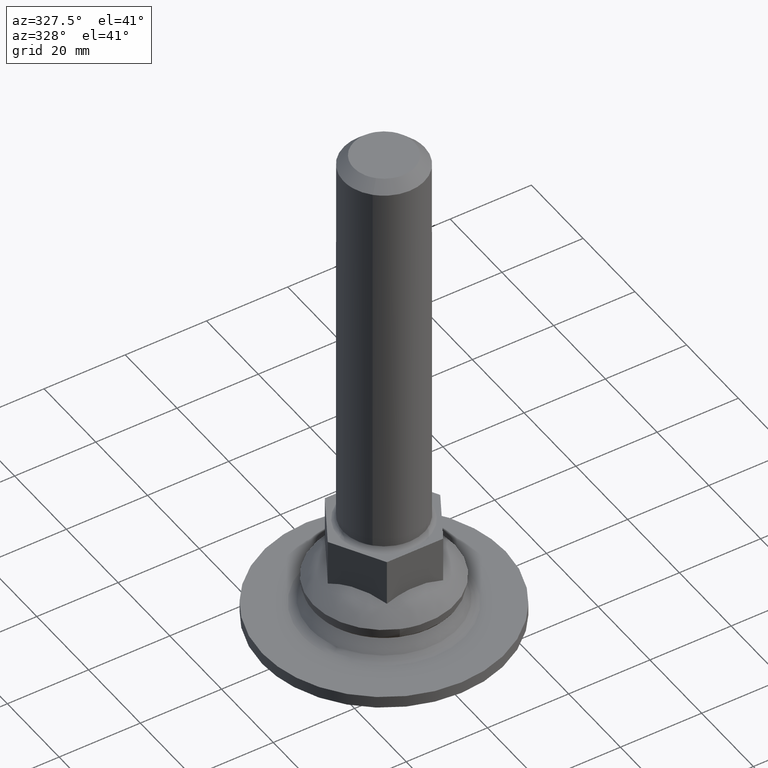
[diagram: clean part render]
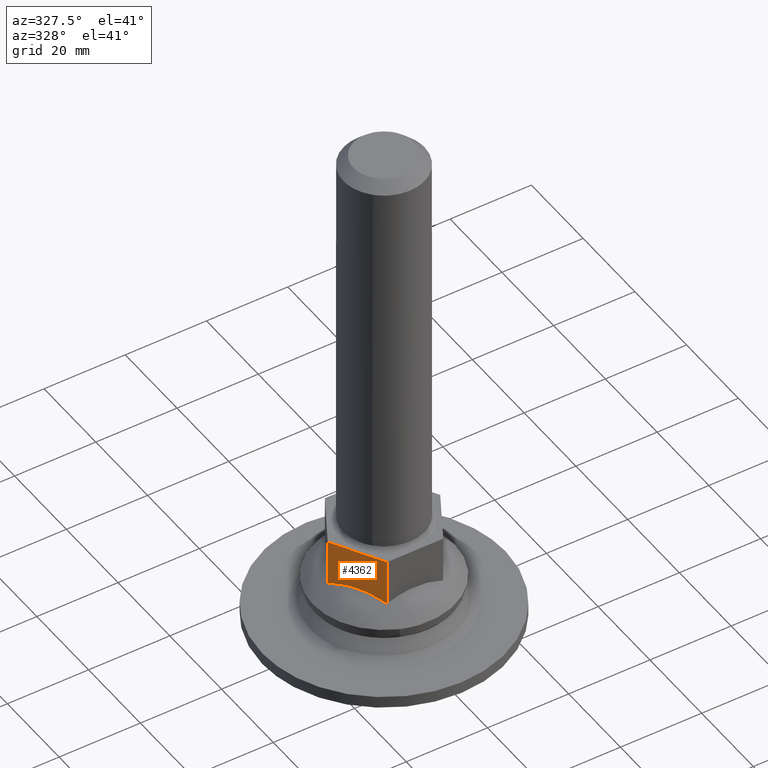
[diagram: same view with one face highlighted and labeled with its STEP entity id]
A machine part, auxiliary view. The second image highlights one B-rep face of the part: STEP entity #4362.
In plain terms, the highlighted face is a freeform B-spline surface patch.
Its self-contained STEP definition (entity closure, byte-faithful):
#4196=CARTESIAN_POINT('',(-6.928203230275470,-12.0,14.570158679988181));
#4197=VERTEX_POINT('',#4196);
#4209=CARTESIAN_POINT('',(-13.856406460550939,0.0,14.570158679988200));
#4210=VERTEX_POINT('',#4209);
#4211=CARTESIAN_POINT('',(-6.928203230275470,-12.0,14.570158679988181));
#4212=CARTESIAN_POINT('',(-7.285923943786082,-11.380409549279809,14.878624134198850));
#4213=CARTESIAN_POINT('',(-8.092111243060964,-9.984052186518978,15.449462380217920));
#4214=CARTESIAN_POINT('',(-9.224221073705994,-8.023180440093631,15.894279441274991));
#4215=CARTESIAN_POINT('',(-10.354963738703340,-6.064676694032227,16.038261341265908));
#4216=CARTESIAN_POINT('',(-11.487352349757259,-4.103322085774786,15.922975781546000));
#4217=CARTESIAN_POINT('',(-12.692499891664040,-2.015945312574849,15.449470847792030));
#4218=CARTESIAN_POINT('',(-13.498685631646950,-0.619590650587730,14.878623104521671));
#4219=CARTESIAN_POINT('',(-13.856406460550939,0.0,14.570158679988200));
#4220=B_SPLINE_CURVE_WITH_KNOTS('',3,(#4211,#4212,#4213,#4214,#4215,#4216,#4217,#4218,#4219),.UNSPECIFIED.,.F.,.U.,(4,1,1,1,1,1,4),(0.000000022264663,2.337326730588218,5.119880742080747,6.900706773744824,9.126711731326992,11.909265742819860,14.246592451143719),.UNSPECIFIED.);
#4221=EDGE_CURVE('',#4197,#4210,#4220,.T.);
#4251=CARTESIAN_POINT('',(-13.856406460550939,0.0,26.0));
#4252=VERTEX_POINT('',#4251);
#4258=CARTESIAN_POINT('',(-6.928203230275470,-12.0,26.0));
#4259=VERTEX_POINT('',#4258);
#4260=CARTESIAN_POINT('',(-13.856406460550939,0.0,26.0));
#4261=CARTESIAN_POINT('',(-6.928203230275470,-12.0,26.0));
#4262=QUASI_UNIFORM_CURVE('',1,(#4260,#4261),.UNSPECIFIED.,.F.,.U.);
#4263=EDGE_CURVE('',#4252,#4259,#4262,.T.);
#4339=CARTESIAN_POINT('',(-6.928203230275470,-12.0,26.0));
#4340=CARTESIAN_POINT('',(-6.928203230275470,-12.0,14.570158679988181));
#4341=QUASI_UNIFORM_CURVE('',1,(#4339,#4340),.UNSPECIFIED.,.F.,.U.);
#4342=EDGE_CURVE('',#4259,#4197,#4341,.T.);
#4347=CARTESIAN_POINT('',(-6.582139492351384,-12.599399976741660,13.999238128206841));
#4348=CARTESIAN_POINT('',(-14.202470384303890,0.599400298606753,13.999238128206841));
#4349=CARTESIAN_POINT('',(-6.582139492351384,-12.599399976741660,26.570920858353581));
#4350=CARTESIAN_POINT('',(-14.202470384303890,0.599400298606753,26.570920858353581));
#4351=B_SPLINE_SURFACE_WITH_KNOTS('',1,1,((#4347,#4349),(#4348,#4350)),.UNSPECIFIED.,.F.,.F.,.U.,(2,2),(2,2),(0.0,15.240661783905020),(0.0,12.571682730146740),.UNSPECIFIED.);
#4352=ORIENTED_EDGE('',*,*,#4221,.F.);
#4353=ORIENTED_EDGE('',*,*,#4342,.F.);
#4354=ORIENTED_EDGE('',*,*,#4263,.F.);
#4355=CARTESIAN_POINT('',(-13.856406460550939,0.0,26.0));
#4356=CARTESIAN_POINT('',(-13.856406460550939,0.0,14.570158679988200));
#4357=QUASI_UNIFORM_CURVE('',1,(#4355,#4356),.UNSPECIFIED.,.F.,.U.);
#4358=EDGE_CURVE('',#4252,#4210,#4357,.T.);
#4359=ORIENTED_EDGE('',*,*,#4358,.T.);
#4360=EDGE_LOOP('',(#4352,#4353,#4354,#4359));
#4361=FACE_OUTER_BOUND('',#4360,.T.);
#4362=ADVANCED_FACE('',(#4361),#4351,.F.);